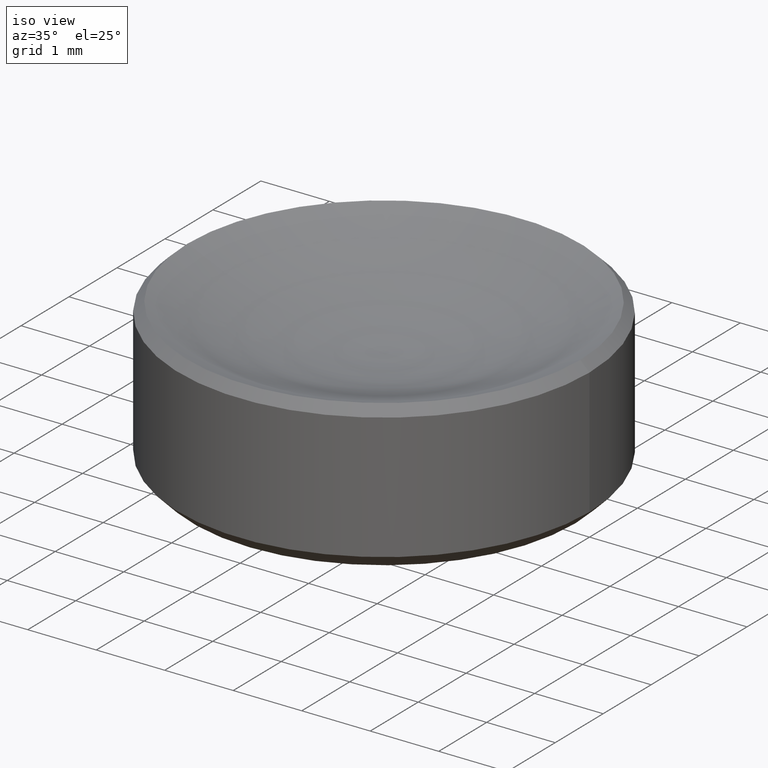
[diagram: clean part render]
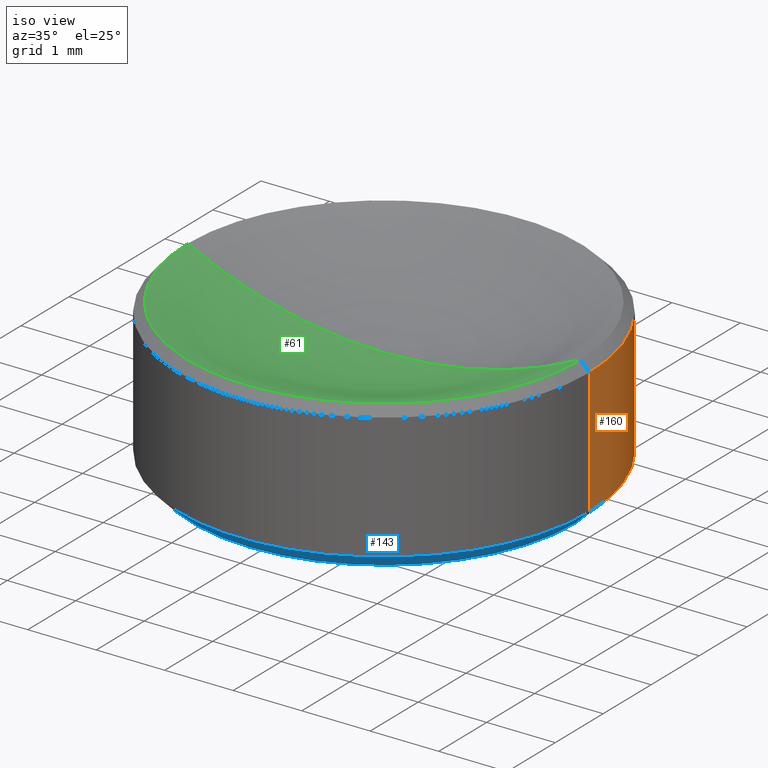
[diagram: same view with three faces highlighted in distinct colors, each labeled with its STEP entity id]
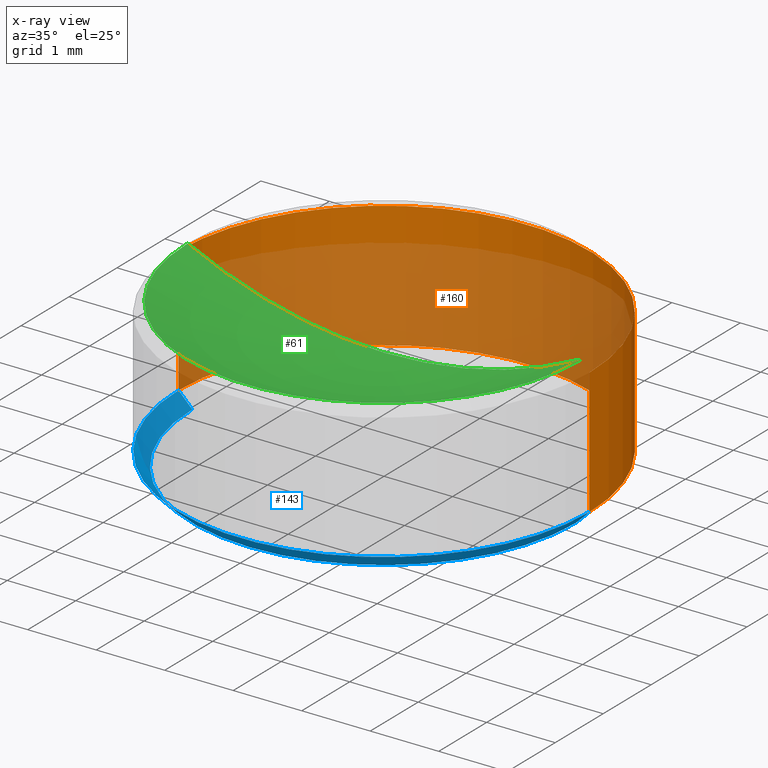
[diagram: x-ray of the same camera — body ghosted, the three highlighted faces saturated]
A machine part, iso view with three faces highlighted in distinct colors.
The next image is the same camera in x-ray (body ghosted, the three faces saturated) — at least one of them is partly hidden behind the body in this view.
Their STEP definitions:

[orange] entity #160 — the highlighted cylindrical surface (partial cylindrical patch) has radius 3 mm, axis along (-0, -0, 1).
#8 = VECTOR ( 'NONE', #132, 1000.000000000000000 ) ;
#21 = AXIS2_PLACEMENT_3D ( 'NONE', #46, #164, #128 ) ;
#22 = LINE ( 'NONE', #142, #118 ) ;
#24 = DIRECTION ( 'NONE',  ( 1.000000000000000000, 0.000000000000000000, 0.000000000000000000 ) ) ;
#32 = CIRCLE ( 'NONE', #21, 3.000000000000000000 ) ;
#33 = ORIENTED_EDGE ( 'NONE', *, *, #224, .T. ) ;
#40 = CARTESIAN_POINT ( 'NONE',  ( 0.000000000000000000, 0.000000000000000000, 1.500000000000000000 ) ) ;
#42 = EDGE_LOOP ( 'NONE', ( #33, #199, #175, #189 ) ) ;
#43 = CARTESIAN_POINT ( 'NONE',  ( 3.000000000000000000, 0.000000000000000000, 0.2000000000000020373 ) ) ;
#44 = CIRCLE ( 'NONE', #177, 3.000000000000000000 ) ;
#46 = CARTESIAN_POINT ( 'NONE',  ( 0.000000000000000000, 0.000000000000000000, 0.2000000000000020373 ) ) ;
#59 = DIRECTION ( 'NONE',  ( -0.000000000000000000, -0.000000000000000000, 1.000000000000000000 ) ) ;
#65 = VERTEX_POINT ( 'NONE', #196 ) ;
#67 = DIRECTION ( 'NONE',  ( 0.000000000000000000, 0.000000000000000000, -1.000000000000000000 ) ) ;
#83 = CARTESIAN_POINT ( 'NONE',  ( 3.000000000000000000, 0.000000000000000000, 1.500000000000000000 ) ) ;
#107 = EDGE_CURVE ( 'NONE', #130, #178, #22, .T. ) ;
#118 = VECTOR ( 'NONE', #218, 1000.000000000000000 ) ;
#125 = FACE_OUTER_BOUND ( 'NONE', #42, .T. ) ;
#128 = DIRECTION ( 'NONE',  ( 1.000000000000000000, 0.000000000000000000, 0.000000000000000000 ) ) ;
#130 = VERTEX_POINT ( 'NONE', #138 ) ;
#132 = DIRECTION ( 'NONE',  ( -0.000000000000000000, -0.000000000000000000, 1.000000000000000000 ) ) ;
#138 = CARTESIAN_POINT ( 'NONE',  ( -3.000000000000000000, 3.673940397442059868E-16, 0.2000000000000020373 ) ) ;
#142 = CARTESIAN_POINT ( 'NONE',  ( -3.000000000000000000, 3.673940397442059868E-16, 1.500000000000000000 ) ) ;
#158 = VERTEX_POINT ( 'NONE', #43 ) ;
#160 = ADVANCED_FACE ( 'NONE', ( #125 ), #237, .T. ) ;
#164 = DIRECTION ( 'NONE',  ( -0.000000000000000000, -0.000000000000000000, 1.000000000000000000 ) ) ;
#166 = LINE ( 'NONE', #83, #8 ) ;
#175 = ORIENTED_EDGE ( 'NONE', *, *, #263, .T. ) ;
#177 = AXIS2_PLACEMENT_3D ( 'NONE', #249, #67, #252 ) ;
#178 = VERTEX_POINT ( 'NONE', #185 ) ;
#185 = CARTESIAN_POINT ( 'NONE',  ( -3.000000000000000000, 3.673940397442059868E-16, 2.039999999999998259 ) ) ;
#189 = ORIENTED_EDGE ( 'NONE', *, *, #230, .F. ) ;
#196 = CARTESIAN_POINT ( 'NONE',  ( 3.000000000000000000, 0.000000000000000000, 2.039999999999998259 ) ) ;
#199 = ORIENTED_EDGE ( 'NONE', *, *, #107, .T. ) ;
#210 = AXIS2_PLACEMENT_3D ( 'NONE', #40, #59, #24 ) ;
#218 = DIRECTION ( 'NONE',  ( -0.000000000000000000, -0.000000000000000000, 1.000000000000000000 ) ) ;
#224 = EDGE_CURVE ( 'NONE', #158, #130, #32, .T. ) ;
#230 = EDGE_CURVE ( 'NONE', #158, #65, #166, .T. ) ;
#237 = CYLINDRICAL_SURFACE ( 'NONE', #210, 3.000000000000000000 ) ;
#249 = CARTESIAN_POINT ( 'NONE',  ( 0.000000000000000000, 0.000000000000000000, 2.039999999999998259 ) ) ;
#252 = DIRECTION ( 'NONE',  ( -1.000000000000000000, 0.000000000000000000, 0.000000000000000000 ) ) ;
#263 = EDGE_CURVE ( 'NONE', #178, #65, #44, .T. ) ;

[blue] entity #143 — the highlighted conical surface has half-angle 45 deg.
#7 = CONICAL_SURFACE ( 'NONE', #193, 3.000000000000000000, 0.7853981633974482790 ) ;
#14 = DIRECTION ( 'NONE',  ( -0.7071067811865474617, 8.659560562354932858E-17, 0.7071067811865474617 ) ) ;
#20 = VECTOR ( 'NONE', #14, 1000.000000000000114 ) ;
#36 = DIRECTION ( 'NONE',  ( -0.000000000000000000, -0.000000000000000000, 1.000000000000000000 ) ) ;
#43 = CARTESIAN_POINT ( 'NONE',  ( 3.000000000000000000, 0.000000000000000000, 0.2000000000000020373 ) ) ;
#48 = CARTESIAN_POINT ( 'NONE',  ( -2.799999999999998046, 3.551475717527323339E-16, 1.836970198721029934E-16 ) ) ;
#50 = AXIS2_PLACEMENT_3D ( 'NONE', #104, #234, #213 ) ;
#77 = FACE_OUTER_BOUND ( 'NONE', #79, .T. ) ;
#79 = EDGE_LOOP ( 'NONE', ( #254, #173, #170, #236 ) ) ;
#86 = CIRCLE ( 'NONE', #251, 3.000000000000000000 ) ;
#97 = CARTESIAN_POINT ( 'NONE',  ( 3.000000000000000000, 0.000000000000000000, 0.2000000000000020373 ) ) ;
#99 = CIRCLE ( 'NONE', #50, 2.799999999999998046 ) ;
#104 = CARTESIAN_POINT ( 'NONE',  ( 0.000000000000000000, 0.000000000000000000, 1.836970198721029934E-16 ) ) ;
#114 = DIRECTION ( 'NONE',  ( 1.000000000000000000, 0.000000000000000000, 0.000000000000000000 ) ) ;
#121 = DIRECTION ( 'NONE',  ( 1.000000000000000000, 0.000000000000000000, 0.000000000000000000 ) ) ;
#126 = EDGE_CURVE ( 'NONE', #226, #158, #264, .T. ) ;
#130 = VERTEX_POINT ( 'NONE', #138 ) ;
#138 = CARTESIAN_POINT ( 'NONE',  ( -3.000000000000000000, 3.673940397442059868E-16, 0.2000000000000020373 ) ) ;
#143 = ADVANCED_FACE ( 'NONE', ( #77 ), #7, .T. ) ;
#145 = DIRECTION ( 'NONE',  ( -0.000000000000000000, -0.000000000000000000, 1.000000000000000000 ) ) ;
#158 = VERTEX_POINT ( 'NONE', #43 ) ;
#162 = DIRECTION ( 'NONE',  ( 0.7071067811865474617, 0.000000000000000000, 0.7071067811865474617 ) ) ;
#163 = CARTESIAN_POINT ( 'NONE',  ( 0.000000000000000000, 0.000000000000000000, 0.2000000000000020373 ) ) ;
#169 = EDGE_CURVE ( 'NONE', #226, #255, #99, .T. ) ;
#170 = ORIENTED_EDGE ( 'NONE', *, *, #126, .T. ) ;
#173 = ORIENTED_EDGE ( 'NONE', *, *, #169, .F. ) ;
#180 = EDGE_CURVE ( 'NONE', #130, #158, #86, .T. ) ;
#184 = VECTOR ( 'NONE', #162, 1000.000000000000114 ) ;
#187 = EDGE_CURVE ( 'NONE', #255, #130, #200, .T. ) ;
#193 = AXIS2_PLACEMENT_3D ( 'NONE', #240, #145, #121 ) ;
#198 = CARTESIAN_POINT ( 'NONE',  ( -3.000000000000000000, 3.673940397442059868E-16, 0.2000000000000020373 ) ) ;
#200 = LINE ( 'NONE', #198, #20 ) ;
#213 = DIRECTION ( 'NONE',  ( 1.000000000000000000, 0.000000000000000000, 0.000000000000000000 ) ) ;
#226 = VERTEX_POINT ( 'NONE', #266 ) ;
#234 = DIRECTION ( 'NONE',  ( 0.000000000000000000, 0.000000000000000000, -1.000000000000000000 ) ) ;
#236 = ORIENTED_EDGE ( 'NONE', *, *, #180, .F. ) ;
#240 = CARTESIAN_POINT ( 'NONE',  ( 0.000000000000000000, 0.000000000000000000, 0.2000000000000020373 ) ) ;
#251 = AXIS2_PLACEMENT_3D ( 'NONE', #163, #36, #114 ) ;
#254 = ORIENTED_EDGE ( 'NONE', *, *, #187, .F. ) ;
#255 = VERTEX_POINT ( 'NONE', #48 ) ;
#264 = LINE ( 'NONE', #97, #184 ) ;
#266 = CARTESIAN_POINT ( 'NONE',  ( 2.799999999999998046, 0.000000000000000000, 1.836970198721029934E-16 ) ) ;

[green] entity #61 — the highlighted toroidal blend (fillet) surface has major radius 0.0022 mm and minor (blend) radius 6.46 mm.
#10 = CARTESIAN_POINT ( 'NONE',  ( 0.000000000000000000, 0.000000000000000000, 7.959999625418450186 ) ) ;
#25 = CIRCLE ( 'NONE', #219, 6.459999999999999076 ) ;
#37 = ORIENTED_EDGE ( 'NONE', *, *, #223, .F. ) ;
#45 = CIRCLE ( 'NONE', #161, 6.459999999999999076 ) ;
#53 = FACE_OUTER_BOUND ( 'NONE', #109, .T. ) ;
#61 = ADVANCED_FACE ( 'NONE', ( #53 ), #256, .F. ) ;
#63 = DIRECTION ( 'NONE',  ( -1.000000000000000000, 1.224646799147352961E-16, 0.000000000000000000 ) ) ;
#64 = CARTESIAN_POINT ( 'NONE',  ( 2.867573379116970411, 0.000000000000000000, 2.172426620883027404 ) ) ;
#69 = DIRECTION ( 'NONE',  ( 0.000000000000000000, -1.000000000000000000, 0.000000000000000000 ) ) ;
#73 = ORIENTED_EDGE ( 'NONE', *, *, #205, .T. ) ;
#74 = DIRECTION ( 'NONE',  ( 1.000000000000000000, 0.000000000000000000, 0.000000000000000000 ) ) ;
#90 = EDGE_CURVE ( 'NONE', #258, #139, #25, .T. ) ;
#94 = CARTESIAN_POINT ( 'NONE',  ( 0.000000000000000000, 0.000000000000000000, 2.172426620883026960 ) ) ;
#96 = CARTESIAN_POINT ( 'NONE',  ( -2.867573379116970411, 3.511764560055757538E-16, 2.172426620883027404 ) ) ;
#101 = DIRECTION ( 'NONE',  ( 1.224646799147353207E-16, 1.000000000000000000, 0.000000000000000000 ) ) ;
#109 = EDGE_LOOP ( 'NONE', ( #37, #153, #73 ) ) ;
#136 = VERTEX_POINT ( 'NONE', #64 ) ;
#139 = VERTEX_POINT ( 'NONE', #96 ) ;
#149 = DIRECTION ( 'NONE',  ( 0.000000000000000000, 0.000000000000000000, -1.000000000000000000 ) ) ;
#153 = ORIENTED_EDGE ( 'NONE', *, *, #90, .T. ) ;
#161 = AXIS2_PLACEMENT_3D ( 'NONE', #228, #69, #149 ) ;
#165 = CIRCLE ( 'NONE', #176, 2.867573379116970411 ) ;
#174 = AXIS2_PLACEMENT_3D ( 'NONE', #10, #257, #74 ) ;
#176 = AXIS2_PLACEMENT_3D ( 'NONE', #94, #186, #188 ) ;
#186 = DIRECTION ( 'NONE',  ( -0.000000000000000000, -0.000000000000000000, 1.000000000000000000 ) ) ;
#188 = DIRECTION ( 'NONE',  ( 1.000000000000000000, 0.000000000000000000, 0.000000000000000000 ) ) ;
#205 = EDGE_CURVE ( 'NONE', #139, #136, #165, .T. ) ;
#206 = CARTESIAN_POINT ( 'NONE',  ( 0.000000000000000000, 0.000000000000000000, 1.500000000000000000 ) ) ;
#219 = AXIS2_PLACEMENT_3D ( 'NONE', #241, #101, #63 ) ;
#223 = EDGE_CURVE ( 'NONE', #258, #136, #45, .T. ) ;
#228 = CARTESIAN_POINT ( 'NONE',  ( -0.002199907603219397254, 0.000000000000000000, 7.959999625418450186 ) ) ;
#241 = CARTESIAN_POINT ( 'NONE',  ( 0.002199907603219397254, -2.694109804702560429E-19, 7.959999625418450186 ) ) ;
#256 = TOROIDAL_SURFACE ( 'NONE', #174, -0.002199907603219397254, 6.459999999999999076 ) ;
#257 = DIRECTION ( 'NONE',  ( -0.000000000000000000, -0.000000000000000000, 1.000000000000000000 ) ) ;
#258 = VERTEX_POINT ( 'NONE', #206 ) ;